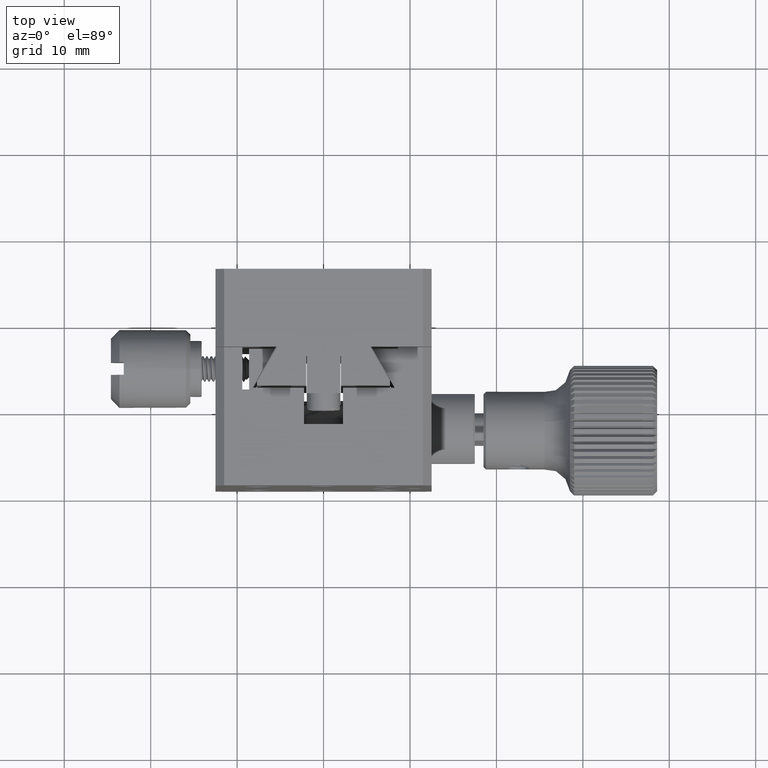
[diagram: clean part render]
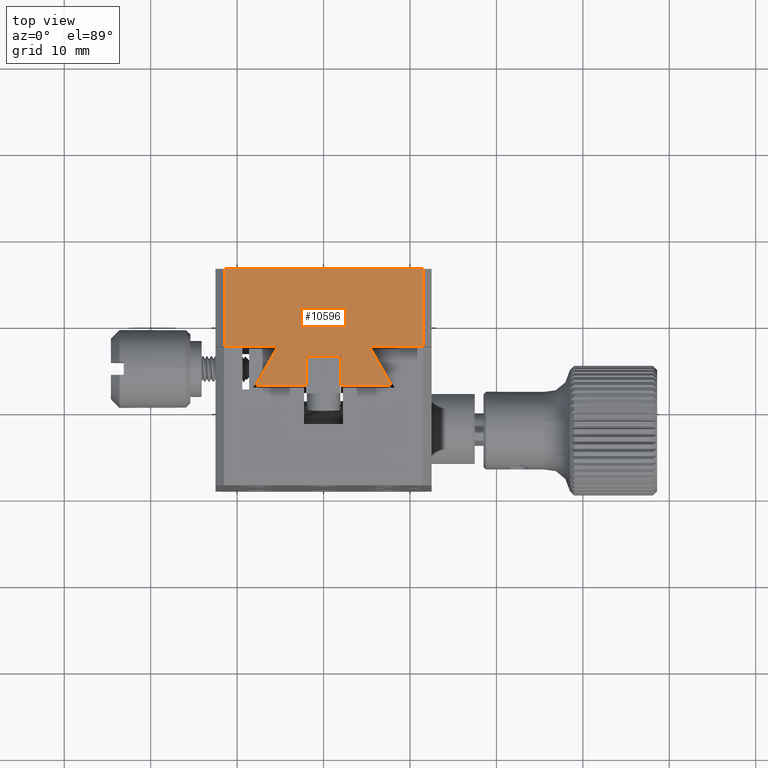
[diagram: same view with one face highlighted and labeled with its STEP entity id]
A machine part, top view. The second image highlights one B-rep face of the part: STEP entity #10596.
In plain terms, the highlighted planar face has unit normal (0, 0, -1).
Its self-contained STEP definition (entity closure, byte-faithful):
#666 = FACE_OUTER_BOUND ( 'NONE', #115748, .T. ) ;
#2023 = LINE ( 'NONE', #107807, #82402 ) ;
#2522 = ORIENTED_EDGE ( 'NONE', *, *, #64217, .F. ) ;
#5127 = VECTOR ( 'NONE', #121843, 1000.000000000000000 ) ;
#5404 = VECTOR ( 'NONE', #87574, 1000.000000000000000 ) ;
#5770 = DIRECTION ( 'NONE',  ( 0.5000000000000138778, 0.8660254037844306030, 0.000000000000000000 ) ) ;
#6182 = EDGE_CURVE ( 'NONE', #118899, #17799, #54360, .T. ) ;
#6909 = LINE ( 'NONE', #36749, #88833 ) ;
#8783 = LINE ( 'NONE', #46132, #36384 ) ;
#10014 = DIRECTION ( 'NONE',  ( -1.000000000000000000, 0.000000000000000000, -0.000000000000000000 ) ) ;
#10596 = ADVANCED_FACE ( 'NONE', ( #666 ), #38619, .F. ) ;
#14590 = VERTEX_POINT ( 'NONE', #15400 ) ;
#15400 = CARTESIAN_POINT ( 'NONE',  ( -2.000000000001064482, 15.90000000000035740, 49.64461662145725285 ) ) ;
#16673 = DIRECTION ( 'NONE',  ( -1.000000000000000000, 0.000000000000000000, -0.000000000000000000 ) ) ;
#17799 = VERTEX_POINT ( 'NONE', #79897 ) ;
#20224 = EDGE_CURVE ( 'NONE', #27872, #91149, #21766, .T. ) ;
#21320 = CARTESIAN_POINT ( 'NONE',  ( -2.000000000001065370, 12.50000000000036060, 49.64461662145725285 ) ) ;
#21766 = LINE ( 'NONE', #100132, #80646 ) ;
#23923 = DIRECTION ( 'NONE',  ( 0.000000000000000000, 1.000000000000000000, -0.000000000000000000 ) ) ;
#24224 = EDGE_CURVE ( 'NONE', #66984, #91149, #6909, .T. ) ;
#25196 = DIRECTION ( 'NONE',  ( 0.5000000000000135447, -0.8660254037844307140, 0.000000000000000000 ) ) ;
#26833 = DIRECTION ( 'NONE',  ( -0.000000000000000000, -1.000000000000000000, -0.000000000000000000 ) ) ;
#26967 = EDGE_CURVE ( 'NONE', #65554, #70637, #115599, .T. ) ;
#27017 = LINE ( 'NONE', #73729, #74856 ) ;
#27829 = LINE ( 'NONE', #47122, #5127 ) ;
#27872 = VERTEX_POINT ( 'NONE', #41083 ) ;
#28097 = VECTOR ( 'NONE', #23923, 1000.000000000000000 ) ;
#29093 = ORIENTED_EDGE ( 'NONE', *, *, #75353, .F. ) ;
#29531 = EDGE_CURVE ( 'NONE', #70637, #17799, #27017, .T. ) ;
#32806 = LINE ( 'NONE', #119340, #64462 ) ;
#33300 = ORIENTED_EDGE ( 'NONE', *, *, #24224, .F. ) ;
#33883 = VERTEX_POINT ( 'NONE', #50326 ) ;
#34314 = LINE ( 'NONE', #60501, #87358 ) ;
#35508 = CARTESIAN_POINT ( 'NONE',  ( -11.50000000000107114, 17.00000000000035527, 49.64461662145725285 ) ) ;
#36141 = DIRECTION ( 'NONE',  ( 0.000000000000000000, 1.000000000000000000, 0.000000000000000000 ) ) ;
#36158 = CARTESIAN_POINT ( 'NONE',  ( -1.064846998544894524E-12, 12.50000000000036060, 49.64461662145725285 ) ) ;
#36184 = VERTEX_POINT ( 'NONE', #113400 ) ;
#36384 = VECTOR ( 'NONE', #26833, 1000.000000000000000 ) ;
#36749 = CARTESIAN_POINT ( 'NONE',  ( -11.50000000000107114, 26.00000000000035527, 49.64461662145725285 ) ) ;
#37445 = VECTOR ( 'NONE', #62110, 1000.000000000000000 ) ;
#38269 = EDGE_CURVE ( 'NONE', #67458, #80894, #91362, .T. ) ;
#38619 = PLANE ( 'NONE',  #68019 ) ;
#40555 = DIRECTION ( 'NONE',  ( -0.000000000000000000, -1.000000000000000000, -0.000000000000000000 ) ) ;
#41083 = CARTESIAN_POINT ( 'NONE',  ( 11.49999999999894129, 26.00000000000035527, 49.64461662145725285 ) ) ;
#41185 = CARTESIAN_POINT ( 'NONE',  ( 5.269059892323086913, 17.00000000000035882, 49.64461662145725285 ) ) ;
#43823 = ORIENTED_EDGE ( 'NONE', *, *, #120921, .F. ) ;
#45888 = CARTESIAN_POINT ( 'NONE',  ( 1.999999999998937072, 26.00000000000035527, 49.64461662145725285 ) ) ;
#46132 = CARTESIAN_POINT ( 'NONE',  ( -2.000000000001064926, 26.00000000000035527, 49.64461662145725285 ) ) ;
#47122 = CARTESIAN_POINT ( 'NONE',  ( 11.49999999999894129, 26.00000000000035527, 49.64461662145725285 ) ) ;
#50326 = CARTESIAN_POINT ( 'NONE',  ( -7.698076211354474729, 12.50000000000036060, 49.64461662145725285 ) ) ;
#52821 = DIRECTION ( 'NONE',  ( -1.000000000000000000, -1.224646799147353207E-16, -0.000000000000000000 ) ) ;
#54360 = LINE ( 'NONE', #71233, #28097 ) ;
#60154 = CARTESIAN_POINT ( 'NONE',  ( 5.499999999998936850, 17.00000000000035882, 49.64461662145725285 ) ) ;
#60501 = CARTESIAN_POINT ( 'NONE',  ( -1.064846998544894524E-12, 15.90000000000035740, 49.64461662145725285 ) ) ;
#60855 = ORIENTED_EDGE ( 'NONE', *, *, #6182, .T. ) ;
#61029 = EDGE_CURVE ( 'NONE', #118899, #67458, #81629, .T. ) ;
#61854 = CARTESIAN_POINT ( 'NONE',  ( -5.269059892325214101, 17.00000000000035527, 49.64461662145725285 ) ) ;
#62110 = DIRECTION ( 'NONE',  ( 0.000000000000000000, 1.000000000000000000, 0.000000000000000000 ) ) ;
#62471 = ORIENTED_EDGE ( 'NONE', *, *, #101766, .F. ) ;
#63984 = LINE ( 'NONE', #101954, #113296 ) ;
#64217 = EDGE_CURVE ( 'NONE', #14590, #110601, #8783, .T. ) ;
#64462 = VECTOR ( 'NONE', #92526, 1000.000000000000000 ) ;
#65554 = VERTEX_POINT ( 'NONE', #84579 ) ;
#66984 = VERTEX_POINT ( 'NONE', #35508 ) ;
#67458 = VERTEX_POINT ( 'NONE', #102729 ) ;
#68019 = AXIS2_PLACEMENT_3D ( 'NONE', #105867, #103389, #10014 ) ;
#70366 = EDGE_CURVE ( 'NONE', #36184, #33883, #2023, .T. ) ;
#70637 = VERTEX_POINT ( 'NONE', #41185 ) ;
#71233 = CARTESIAN_POINT ( 'NONE',  ( 7.698076211352442577, 12.50000000000036060, 49.64461662145725285 ) ) ;
#72292 = DIRECTION ( 'NONE',  ( -1.000000000000000000, 0.000000000000000000, -0.000000000000000000 ) ) ;
#73729 = CARTESIAN_POINT ( 'NONE',  ( 5.269059892323086025, 17.00000000000035882, 49.64461662145725285 ) ) ;
#74856 = VECTOR ( 'NONE', #25196, 1000.000000000000114 ) ;
#75353 = EDGE_CURVE ( 'NONE', #110601, #33883, #32806, .T. ) ;
#75933 = ORIENTED_EDGE ( 'NONE', *, *, #123251, .F. ) ;
#79897 = CARTESIAN_POINT ( 'NONE',  ( 7.698076211352442577, 12.79282032302773509, 49.64461662145725285 ) ) ;
#80646 = VECTOR ( 'NONE', #52821, 1000.000000000000000 ) ;
#80894 = VERTEX_POINT ( 'NONE', #86936 ) ;
#81629 = LINE ( 'NONE', #36158, #103637 ) ;
#82402 = VECTOR ( 'NONE', #40555, 1000.000000000000000 ) ;
#82849 = ORIENTED_EDGE ( 'NONE', *, *, #20224, .T. ) ;
#84579 = CARTESIAN_POINT ( 'NONE',  ( 11.49999999999894129, 17.00000000000035527, 49.64461662145725285 ) ) ;
#86936 = CARTESIAN_POINT ( 'NONE',  ( 1.999999999998936184, 15.90000000000035740, 49.64461662145725285 ) ) ;
#87158 = ORIENTED_EDGE ( 'NONE', *, *, #70366, .T. ) ;
#87358 = VECTOR ( 'NONE', #72292, 1000.000000000000000 ) ;
#87397 = EDGE_CURVE ( 'NONE', #36184, #109975, #99165, .T. ) ;
#87574 = DIRECTION ( 'NONE',  ( -1.000000000000000000, -2.478176394252581141E-16, 0.000000000000000000 ) ) ;
#88833 = VECTOR ( 'NONE', #36141, 1000.000000000000000 ) ;
#89434 = ORIENTED_EDGE ( 'NONE', *, *, #29531, .F. ) ;
#91149 = VERTEX_POINT ( 'NONE', #122933 ) ;
#91362 = LINE ( 'NONE', #45888, #37445 ) ;
#91590 = DIRECTION ( 'NONE',  ( -1.000000000000000000, 0.000000000000000000, -0.000000000000000000 ) ) ;
#92526 = DIRECTION ( 'NONE',  ( -1.000000000000000000, 0.000000000000000000, -0.000000000000000000 ) ) ;
#99165 = LINE ( 'NONE', #100376, #116620 ) ;
#100113 = ORIENTED_EDGE ( 'NONE', *, *, #87397, .F. ) ;
#100132 = CARTESIAN_POINT ( 'NONE',  ( -12.50000000000106581, 26.00000000000035527, 49.64461662145725285 ) ) ;
#100376 = CARTESIAN_POINT ( 'NONE',  ( -7.698076211354474729, 12.79282032302789673, 49.64461662145725285 ) ) ;
#101766 = EDGE_CURVE ( 'NONE', #27872, #65554, #27829, .T. ) ;
#101817 = ORIENTED_EDGE ( 'NONE', *, *, #26967, .F. ) ;
#101954 = CARTESIAN_POINT ( 'NONE',  ( -1.064846998544894524E-12, 17.00000000000035527, 49.64461662145725285 ) ) ;
#102729 = CARTESIAN_POINT ( 'NONE',  ( 1.999999999998936628, 12.50000000000036238, 49.64461662145725285 ) ) ;
#103389 = DIRECTION ( 'NONE',  ( 0.000000000000000000, 0.000000000000000000, -1.000000000000000000 ) ) ;
#103637 = VECTOR ( 'NONE', #91590, 1000.000000000000000 ) ;
#105867 = CARTESIAN_POINT ( 'NONE',  ( -1.064846998544894524E-12, 26.00000000000035527, 49.64461662145725285 ) ) ;
#107807 = CARTESIAN_POINT ( 'NONE',  ( -7.698076211354474729, 12.50000000000036060, 49.64461662145725285 ) ) ;
#108029 = ORIENTED_EDGE ( 'NONE', *, *, #38269, .F. ) ;
#109975 = VERTEX_POINT ( 'NONE', #61854 ) ;
#110093 = CARTESIAN_POINT ( 'NONE',  ( 7.698076211352442577, 12.50000000000036238, 49.64461662145725285 ) ) ;
#110601 = VERTEX_POINT ( 'NONE', #21320 ) ;
#113296 = VECTOR ( 'NONE', #16673, 1000.000000000000000 ) ;
#113400 = CARTESIAN_POINT ( 'NONE',  ( -7.698076211354474729, 12.79282032302789851, 49.64461662145725285 ) ) ;
#115599 = LINE ( 'NONE', #60154, #5404 ) ;
#115748 = EDGE_LOOP ( 'NONE', ( #100113, #87158, #29093, #2522, #43823, #108029, #122096, #60855, #89434, #101817, #62471, #82849, #33300, #75933 ) ) ;
#116620 = VECTOR ( 'NONE', #5770, 1000.000000000000000 ) ;
#118899 = VERTEX_POINT ( 'NONE', #110093 ) ;
#119340 = CARTESIAN_POINT ( 'NONE',  ( -1.064846998544894524E-12, 12.50000000000036060, 49.64461662145725285 ) ) ;
#120921 = EDGE_CURVE ( 'NONE', #80894, #14590, #34314, .T. ) ;
#121843 = DIRECTION ( 'NONE',  ( -0.000000000000000000, -1.000000000000000000, -0.000000000000000000 ) ) ;
#122096 = ORIENTED_EDGE ( 'NONE', *, *, #61029, .F. ) ;
#122933 = CARTESIAN_POINT ( 'NONE',  ( -11.50000000000107114, 26.00000000000035527, 49.64461662145725285 ) ) ;
#123251 = EDGE_CURVE ( 'NONE', #109975, #66984, #63984, .T. ) ;